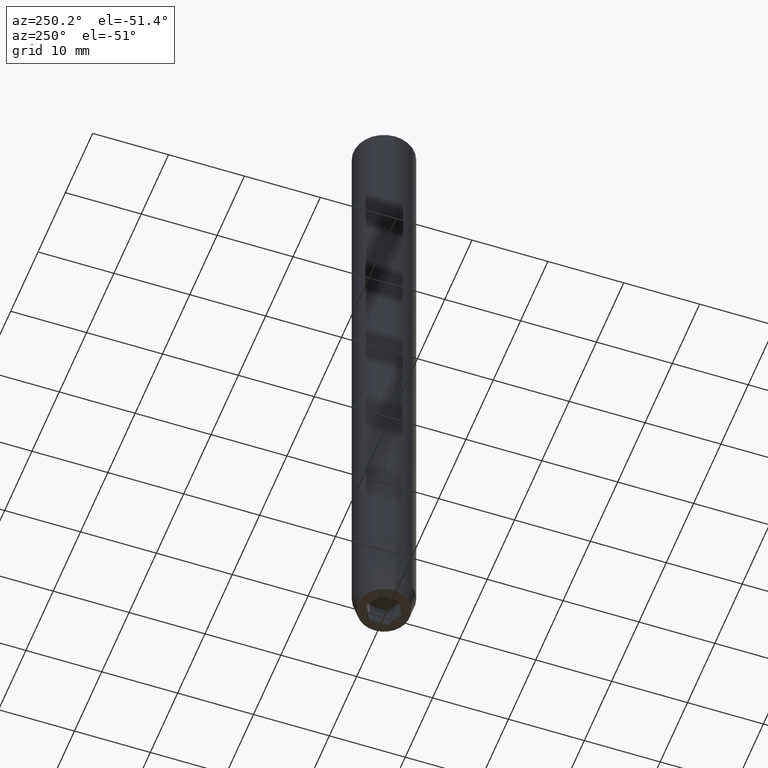
[diagram: clean part render]
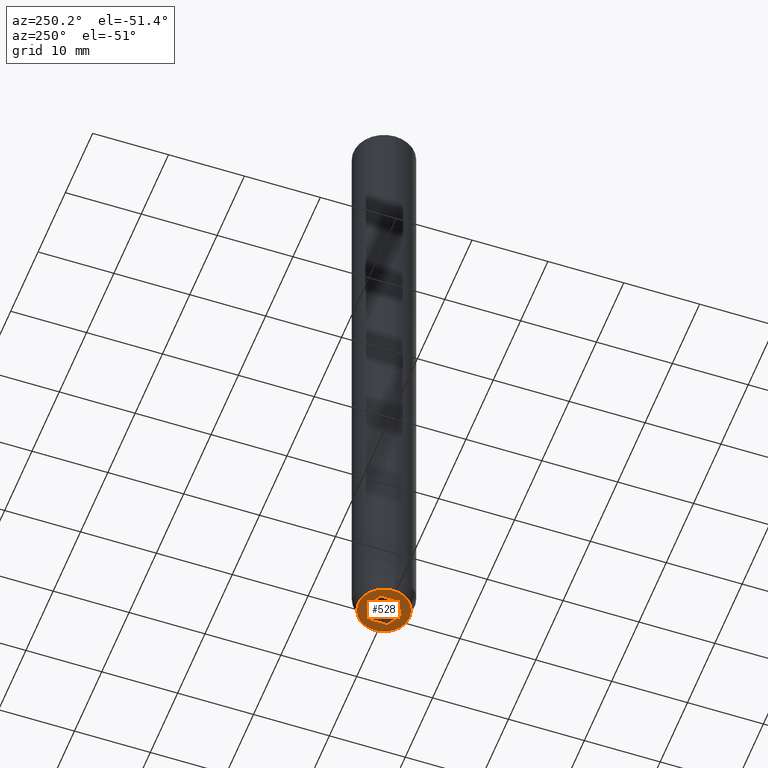
[diagram: same view with one face highlighted and labeled with its STEP entity id]
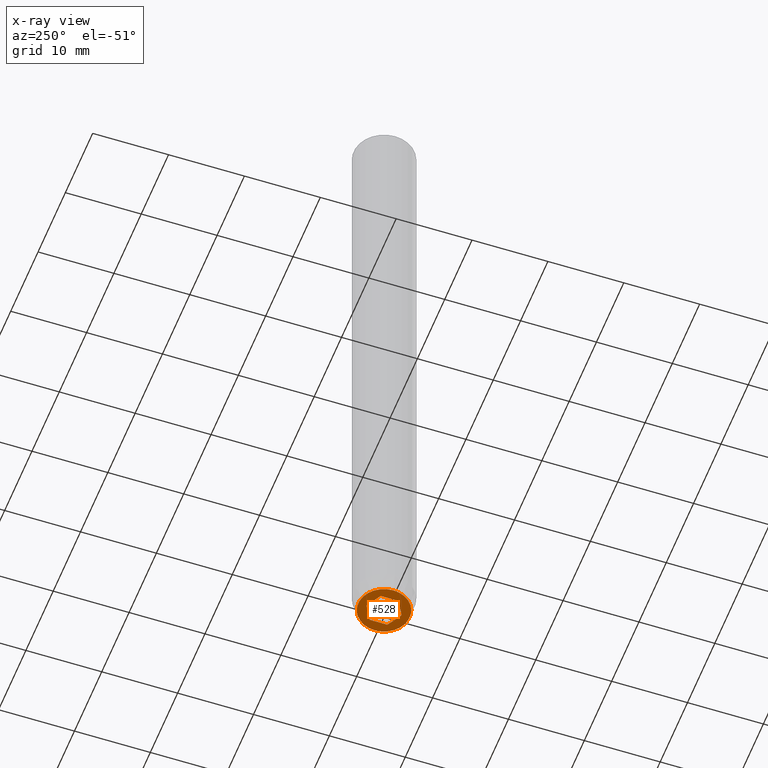
[diagram: x-ray of the same camera — body ghosted, the highlighted face saturated]
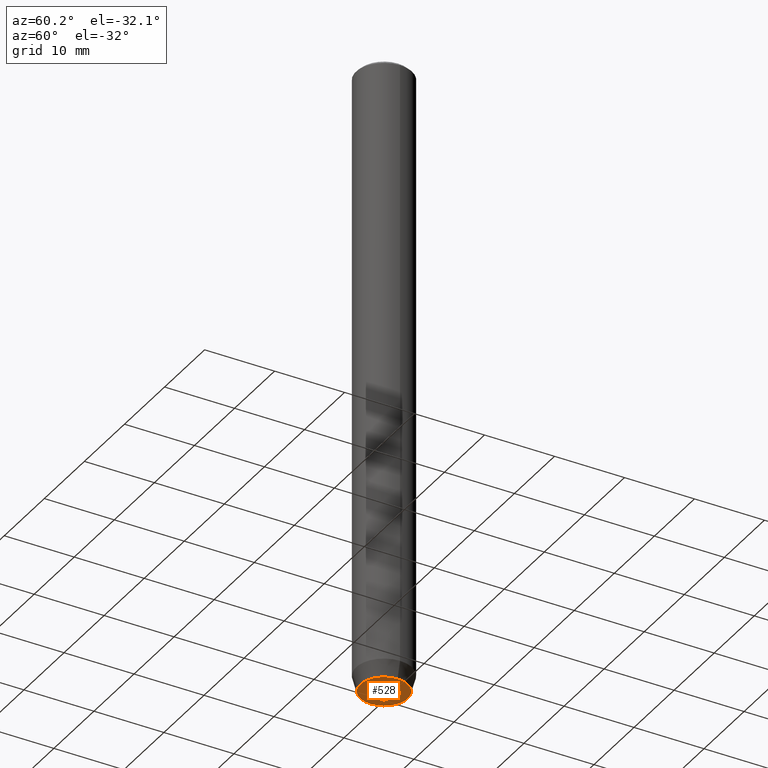
[diagram: same view with one face highlighted and labeled with its STEP entity id]
A machine part, auxiliary view. The second image highlights one B-rep face of the part: STEP entity #528.
The next image is the same camera in x-ray: the body ghosted, the highlighted face saturated — about 0% of this face is hidden behind the body in this view.
A second angle (auxiliary view) of the same face is appended — the face is thin or edge-on in the first view.
In plain terms, the highlighted planar face has unit normal (0, 0, -1).
Its self-contained STEP definition (entity closure, byte-faithful):
#39 = EDGE_CURVE ( 'NONE', #122, #66, #262, .T. ) ;
#40 = ORIENTED_EDGE ( 'NONE', *, *, #184, .F. ) ;
#44 = VERTEX_POINT ( 'NONE', #536 ) ;
#47 = CARTESIAN_POINT ( 'NONE',  ( 2.168404344971008868E-16, -2.309401076758503812, -90.00000000000000000 ) ) ;
#53 = CARTESIAN_POINT ( 'NONE',  ( -1.000000000000000222, -1.732050807568877637, -90.00000000000000000 ) ) ;
#66 = VERTEX_POINT ( 'NONE', #413 ) ;
#69 = CARTESIAN_POINT ( 'NONE',  ( 0.000000000000000000, 0.000000000000000000, -90.00000000000000000 ) ) ;
#72 = ORIENTED_EDGE ( 'NONE', *, *, #120, .F. ) ;
#87 = VECTOR ( 'NONE', #547, 1000.000000000000000 ) ;
#97 = DIRECTION ( 'NONE',  ( 0.000000000000000000, 0.000000000000000000, -1.000000000000000000 ) ) ;
#98 = DIRECTION ( 'NONE',  ( -0.8660254037844388186, -0.4999999999999996114, 0.000000000000000000 ) ) ;
#101 = DIRECTION ( 'NONE',  ( 1.000000000000000000, 0.000000000000000000, 0.000000000000000000 ) ) ;
#107 = CARTESIAN_POINT ( 'NONE',  ( -1.999999999999997780, 1.154700538379253238, -90.00000000000000000 ) ) ;
#120 = EDGE_CURVE ( 'NONE', #489, #297, #464, .T. ) ;
#122 = VERTEX_POINT ( 'NONE', #563 ) ;
#142 = CARTESIAN_POINT ( 'NONE',  ( 2.000000000000000888, 0.000000000000000000, -90.00000000000000000 ) ) ;
#149 = VERTEX_POINT ( 'NONE', #463 ) ;
#150 = CIRCLE ( 'NONE', #394, 3.383716857408417766 ) ;
#155 = LINE ( 'NONE', #509, #401 ) ;
#158 = DIRECTION ( 'NONE',  ( 5.633679745264339711E-16, 1.000000000000000000, 0.000000000000000000 ) ) ;
#163 = DIRECTION ( 'NONE',  ( -0.8660254037844387076, 0.5000000000000001110, 0.000000000000000000 ) ) ;
#171 = VECTOR ( 'NONE', #372, 1000.000000000000000 ) ;
#184 = EDGE_CURVE ( 'NONE', #149, #421, #155, .T. ) ;
#207 = ORIENTED_EDGE ( 'NONE', *, *, #219, .F. ) ;
#213 = EDGE_CURVE ( 'NONE', #329, #489, #469, .T. ) ;
#217 = VECTOR ( 'NONE', #324, 1000.000000000000000 ) ;
#219 = EDGE_CURVE ( 'NONE', #66, #122, #150, .T. ) ;
#223 = AXIS2_PLACEMENT_3D ( 'NONE', #69, #562, #101 ) ;
#225 = LINE ( 'NONE', #410, #87 ) ;
#231 = CARTESIAN_POINT ( 'NONE',  ( -1.999999999999998668, -1.154700538379252572, -90.00000000000000000 ) ) ;
#246 = CARTESIAN_POINT ( 'NONE',  ( -1.999999999999998224, 1.126735949052866956E-15, -90.00000000000000000 ) ) ;
#259 = ORIENTED_EDGE ( 'NONE', *, *, #368, .F. ) ;
#262 = CIRCLE ( 'NONE', #223, 3.383716857408417766 ) ;
#268 = ORIENTED_EDGE ( 'NONE', *, *, #39, .F. ) ;
#283 = DIRECTION ( 'NONE',  ( -1.000000000000000000, 0.000000000000000000, -0.000000000000000000 ) ) ;
#292 = VECTOR ( 'NONE', #158, 1000.000000000000000 ) ;
#296 = DIRECTION ( 'NONE',  ( -0.000000000000000000, -0.000000000000000000, 1.000000000000000000 ) ) ;
#297 = VERTEX_POINT ( 'NONE', #349 ) ;
#301 = EDGE_LOOP ( 'NONE', ( #207, #268 ) ) ;
#324 = DIRECTION ( 'NONE',  ( 0.000000000000000000, -1.000000000000000000, 0.000000000000000000 ) ) ;
#329 = VERTEX_POINT ( 'NONE', #231 ) ;
#333 = ORIENTED_EDGE ( 'NONE', *, *, #361, .F. ) ;
#335 = DIRECTION ( 'NONE',  ( 1.000000000000000000, 0.000000000000000000, 0.000000000000000000 ) ) ;
#349 = CARTESIAN_POINT ( 'NONE',  ( 0.000000000000000000, 2.309401076758503812, -90.00000000000000000 ) ) ;
#361 = EDGE_CURVE ( 'NONE', #297, #44, #225, .T. ) ;
#362 = VECTOR ( 'NONE', #163, 999.9999999999998863 ) ;
#368 = EDGE_CURVE ( 'NONE', #44, #149, #550, .T. ) ;
#372 = DIRECTION ( 'NONE',  ( 0.8660254037844385966, 0.5000000000000001110, 0.000000000000000000 ) ) ;
#379 = LINE ( 'NONE', #53, #362 ) ;
#394 = AXIS2_PLACEMENT_3D ( 'NONE', #424, #296, #335 ) ;
#401 = VECTOR ( 'NONE', #98, 1000.000000000000114 ) ;
#410 = CARTESIAN_POINT ( 'NONE',  ( 1.000000000000000444, 1.732050807568877637, -90.00000000000000000 ) ) ;
#413 = CARTESIAN_POINT ( 'NONE',  ( 3.383716857408417766, 0.000000000000000000, -90.00000000000000000 ) ) ;
#415 = FACE_OUTER_BOUND ( 'NONE', #301, .T. ) ;
#421 = VERTEX_POINT ( 'NONE', #47 ) ;
#424 = CARTESIAN_POINT ( 'NONE',  ( 0.000000000000000000, 0.000000000000000000, -90.00000000000000000 ) ) ;
#463 = CARTESIAN_POINT ( 'NONE',  ( 2.000000000000000888, -1.154700538379252572, -90.00000000000000000 ) ) ;
#464 = LINE ( 'NONE', #515, #171 ) ;
#466 = EDGE_LOOP ( 'NONE', ( #72, #578, #522, #40, #259, #333 ) ) ;
#467 = PLANE ( 'NONE',  #490 ) ;
#469 = LINE ( 'NONE', #246, #292 ) ;
#475 = FACE_BOUND ( 'NONE', #466, .T. ) ;
#489 = VERTEX_POINT ( 'NONE', #107 ) ;
#490 = AXIS2_PLACEMENT_3D ( 'NONE', #557, #97, #283 ) ;
#509 = CARTESIAN_POINT ( 'NONE',  ( 0.9999999999999997780, -1.732050807568878747, -90.00000000000000000 ) ) ;
#515 = CARTESIAN_POINT ( 'NONE',  ( -1.000000000000000444, 1.732050807568877637, -90.00000000000000000 ) ) ;
#522 = ORIENTED_EDGE ( 'NONE', *, *, #551, .F. ) ;
#528 = ADVANCED_FACE ( 'NONE', ( #475, #415 ), #467, .T. ) ;
#536 = CARTESIAN_POINT ( 'NONE',  ( 2.000000000000000888, 1.154700538379251462, -90.00000000000000000 ) ) ;
#547 = DIRECTION ( 'NONE',  ( 0.8660254037844385966, -0.5000000000000001110, 0.000000000000000000 ) ) ;
#550 = LINE ( 'NONE', #142, #217 ) ;
#551 = EDGE_CURVE ( 'NONE', #421, #329, #379, .T. ) ;
#557 = CARTESIAN_POINT ( 'NONE',  ( 0.000000000000000000, 3.383716857408417766, -90.00000000000000000 ) ) ;
#562 = DIRECTION ( 'NONE',  ( -0.000000000000000000, -0.000000000000000000, 1.000000000000000000 ) ) ;
#563 = CARTESIAN_POINT ( 'NONE',  ( -3.383716857408417766, 4.521222607617785469E-16, -90.00000000000000000 ) ) ;
#578 = ORIENTED_EDGE ( 'NONE', *, *, #213, .F. ) ;